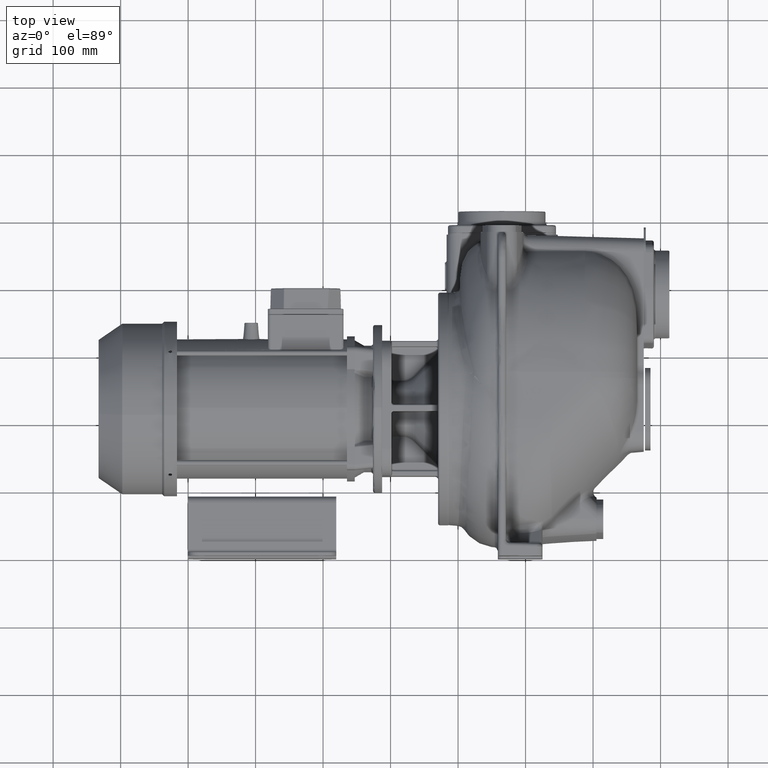
[diagram: clean part render]
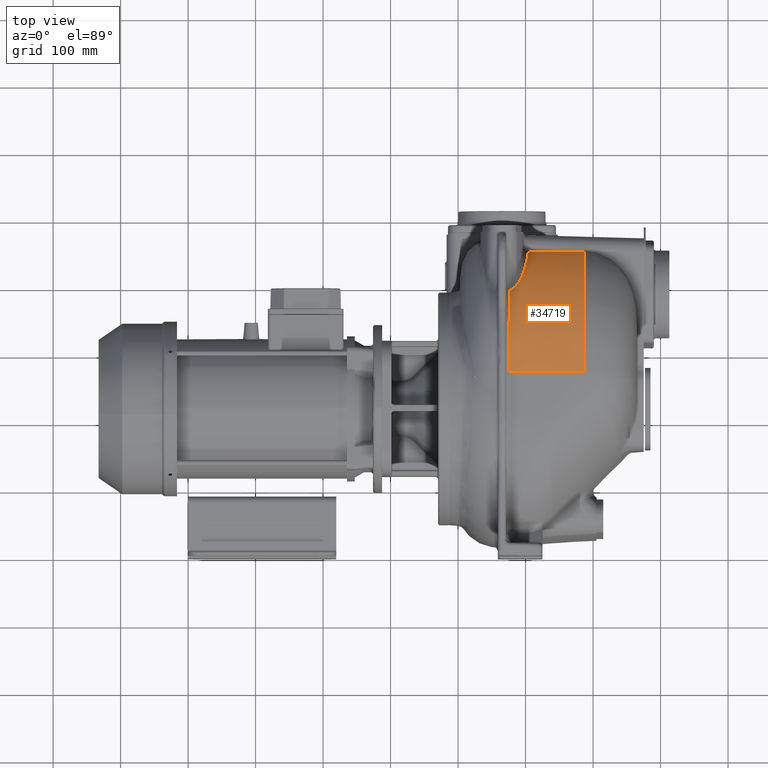
[diagram: same view with one face highlighted and labeled with its STEP entity id]
A machine part, top view. The second image highlights one B-rep face of the part: STEP entity #34719.
In plain terms, the highlighted conical surface has half-angle 2 deg.
Its self-contained STEP definition (entity closure, byte-faithful):
#6806=CARTESIAN_POINT('',(-2.417449748351E1,2.718678243979E2,
-3.823675415175E1));
#6807=DIRECTION('',(-1.E0,0.E0,0.E0));
#6808=DIRECTION('',(0.E0,3.912327646095E-1,9.202917602022E-1));
#6809=AXIS2_PLACEMENT_3D('',#6806,#6807,#6808);
#6811=CARTESIAN_POINT('',(-5.268760408418E0,4.151513843552E2,1.099001172186E2));
#6812=CARTESIAN_POINT('',(-5.953706547833E0,4.129229550286E2,1.120888148280E2));
#6813=CARTESIAN_POINT('',(-7.605421968545E0,4.087144220803E2,1.160429190323E2));
#6814=CARTESIAN_POINT('',(-1.106857524518E1,4.033018904877E2,1.208147920655E2));
#6815=CARTESIAN_POINT('',(-1.509697650761E1,3.988230359307E2,1.245742618216E2));
#6816=CARTESIAN_POINT('',(-1.956052513320E1,3.953642037146E2,1.273952715675E2));
#6817=CARTESIAN_POINT('',(-2.261193879376E1,3.937585798449E2,1.287003657611E2));
#6818=CARTESIAN_POINT('',(-2.417445201654E1,3.931389228066E2,1.292164972312E2));
#6820=CARTESIAN_POINT('',(3.915108142917E0,4.511445771626E2,6.277051332414E1));
#6821=CARTESIAN_POINT('',(3.797438916311E0,4.482088742827E2,6.798943291855E1));
#6822=CARTESIAN_POINT('',(2.960610079226E0,4.416955079927E2,7.854002005108E1));
#6823=CARTESIAN_POINT('',(-6.817099446803E-2,4.298621321641E2,
9.434066573036E1));
#6824=CARTESIAN_POINT('',(-3.331325453815E0,4.203406688787E2,1.047867190963E2));
#6825=CARTESIAN_POINT('',(-5.268760408418E0,4.151513843552E2,1.099001172186E2));
#6827=CARTESIAN_POINT('',(3.915108142917E0,4.511445771626E2,6.277051332414E1));
#6828=CARTESIAN_POINT('',(1.323600469439E1,4.512251341572E2,6.196443594065E1));
#6829=CARTESIAN_POINT('',(3.187691670509E1,4.513836688453E2,6.034057449460E1));
#6830=CARTESIAN_POINT('',(5.983584735581E1,4.516118557777E2,5.787054531062E1));
#6831=CARTESIAN_POINT('',(7.847351673987E1,4.517563328778E2,5.620165174534E1));
#6832=CARTESIAN_POINT('',(8.779195970114E1,4.518263550529E2,5.536180663218E1));
#6834=CARTESIAN_POINT('',(8.779195973637E1,2.718678243979E2,-3.823675415175E1));
#6835=DIRECTION('',(1.E0,0.E0,0.E0));
#6836=DIRECTION('',(0.E0,8.871761878148E-1,4.614308309752E-1));
#6837=AXIS2_PLACEMENT_3D('',#6834,#6835,#6836);
#6839=CARTESIAN_POINT('',(-2.510419492273E1,2.718678243979E2,
-3.823675415175E1));
#6840=DIRECTION('',(-1.E0,0.E0,0.E0));
#6841=DIRECTION('',(0.E0,0.E0,1.E0));
#6842=AXIS2_PLACEMENT_3D('',#6839,#6840,#6841);
#6844=CARTESIAN_POINT('',(-2.510419492272E1,3.274758741686E2,1.609326346051E2));
#6845=CARTESIAN_POINT('',(-2.510420416314E1,3.306236911112E2,1.600537649837E2));
#6846=CARTESIAN_POINT('',(-2.491315705477E1,3.366895726490E2,1.581922264027E2));
#6847=CARTESIAN_POINT('',(-2.438221190382E1,3.450869265982E2,1.551905589541E2));
#6848=CARTESIAN_POINT('',(-2.417450819268E1,3.502692751753E2,1.530948782472E2));
#6849=CARTESIAN_POINT('',(-2.417449745145E1,3.527568184674E2,1.520373779433E2));
#6875=DIRECTION('',(9.993908270187E-1,-4.979618670390E-12,-3.489949671322E-2));
#6876=VECTOR('',#6875,1.129649698664E2);
#6877=CARTESIAN_POINT('',(-2.510419492273E1,2.718678243979E2,1.685498523223E2));
#6878=LINE('',#6877,#6876);
#18005=CARTESIAN_POINT('',(8.779195973616E1,2.718678243973E2,1.646074317278E2));
#18007=VERTEX_POINT('',#18005);
#18282=CARTESIAN_POINT('',(-2.417449748351E1,3.527568184678E2,
1.520373779443E2));
#18283=CARTESIAN_POINT('',(-2.417449748351E1,3.931389655243E2,
1.292164782341E2));
#18284=VERTEX_POINT('',#18282);
#18285=VERTEX_POINT('',#18283);
#18333=CARTESIAN_POINT('',(-5.268760408418E0,4.151513843552E2,
1.099001172186E2));
#18335=VERTEX_POINT('',#18333);
#18419=VERTEX_POINT('',#6820);
#18438=VERTEX_POINT('',#6844);
#18440=CARTESIAN_POINT('',(-2.510419492273E1,2.718678243979E2,
1.685498523223E2));
#18441=VERTEX_POINT('',#18440);
#18546=CARTESIAN_POINT('',(8.779195973637E1,4.518263559479E2,5.536180709768E1));
#18547=VERTEX_POINT('',#18546);
#34699=CARTESIAN_POINT('',(3.134388240682E1,2.718678243979E2,
-3.823675415175E1));
#34700=DIRECTION('',(-1.E0,0.E0,0.E0));
#34701=DIRECTION('',(0.E0,0.E0,1.E0));
#34702=AXIS2_PLACEMENT_3D('',#34699,#34700,#34701);
#34703=CONICAL_SURFACE('',#34702,2.048153961774E2,2.E0);
#34705=ORIENTED_EDGE('',*,*,#34704,.T.);
#34706=ORIENTED_EDGE('',*,*,#34556,.F.);
#34707=ORIENTED_EDGE('',*,*,#34615,.F.);
#34708=ORIENTED_EDGE('',*,*,#34690,.T.);
#34710=ORIENTED_EDGE('',*,*,#34709,.T.);
#34712=ORIENTED_EDGE('',*,*,#34711,.F.);
#34714=ORIENTED_EDGE('',*,*,#34713,.T.);
#34716=ORIENTED_EDGE('',*,*,#34715,.T.);
#34717=EDGE_LOOP('',(#34705,#34706,#34707,#34708,#34710,#34712,#34714,#34716));
#34718=FACE_OUTER_BOUND('',#34717,.F.);
#34719=ADVANCED_FACE('',(#34718),#34703,.T.);
#6810=CIRCLE('',#6809,2.067541407241E2);
#6819=B_SPLINE_CURVE_WITH_KNOTS('',3,(#6811,#6812,#6813,#6814,#6815,#6816,#6817,
#6818),.UNSPECIFIED.,.F.,.F.,(4,1,1,1,1,4),(0.E0,2.E-1,4.E-1,6.E-1,8.E-1,1.E0),
.UNSPECIFIED.);
#6826=B_SPLINE_CURVE_WITH_KNOTS('',3,(#6820,#6821,#6822,#6823,#6824,#6825),
.UNSPECIFIED.,.F.,.F.,(4,1,1,4),(0.E0,3.333333333333E-1,6.666666666667E-1,1.E0),
.UNSPECIFIED.);
#6833=B_SPLINE_CURVE_WITH_KNOTS('',3,(#6827,#6828,#6829,#6830,#6831,#6832),
.UNSPECIFIED.,.F.,.F.,(4,1,1,4),(0.E0,3.333333333333E-1,6.666666666667E-1,1.E0),
.UNSPECIFIED.);
#6838=CIRCLE('',#6837,2.028441858807E2);
#6843=CIRCLE('',#6842,2.067866064741E2);
#6850=B_SPLINE_CURVE_WITH_KNOTS('',3,(#6844,#6845,#6846,#6847,#6848,#6849),
.UNSPECIFIED.,.F.,.F.,(4,1,1,4),(0.E0,3.333333333333E-1,6.666666666667E-1,1.E0),
.UNSPECIFIED.);
#34556=EDGE_CURVE('',#18335,#18285,#6819,.T.);
#34615=EDGE_CURVE('',#18419,#18335,#6826,.T.);
#34690=EDGE_CURVE('',#18419,#18547,#6833,.T.);
#34704=EDGE_CURVE('',#18284,#18285,#6810,.T.);
#34709=EDGE_CURVE('',#18547,#18007,#6838,.T.);
#34711=EDGE_CURVE('',#18441,#18007,#6878,.T.);
#34713=EDGE_CURVE('',#18441,#18438,#6843,.T.);
#34715=EDGE_CURVE('',#18438,#18284,#6850,.T.);